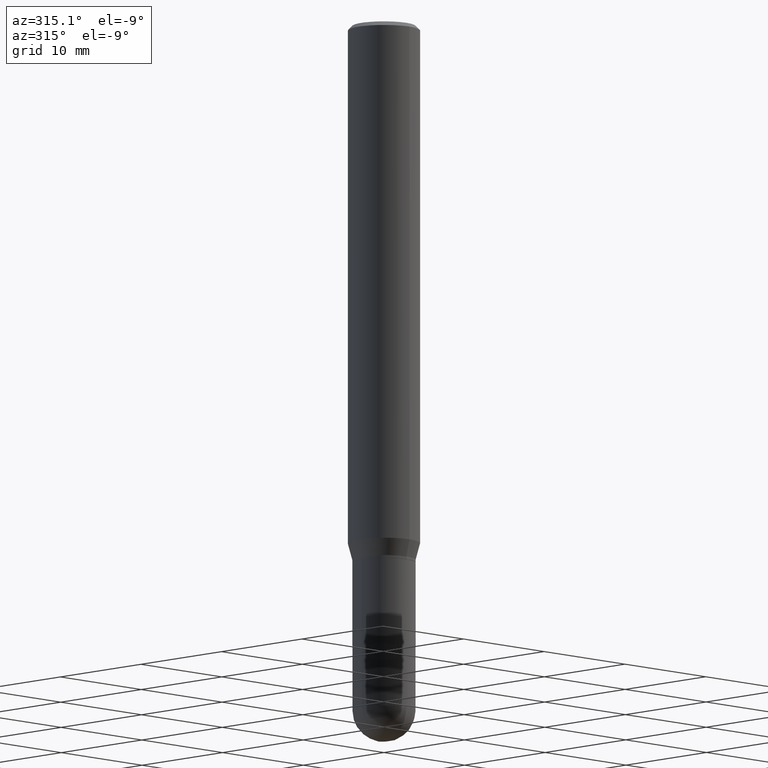
[diagram: clean part render]
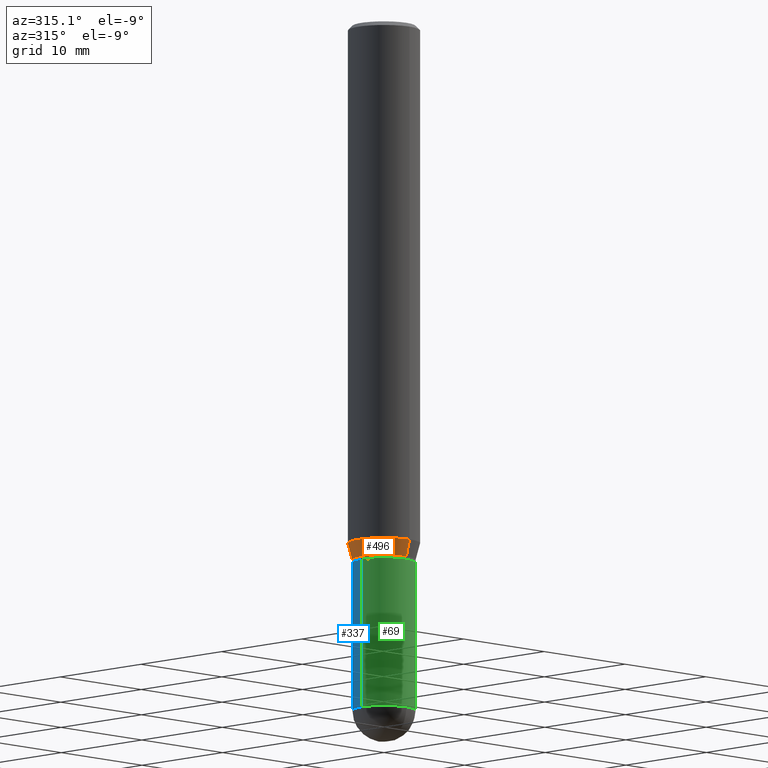
[diagram: same view with three faces highlighted in distinct colors, each labeled with its STEP entity id]
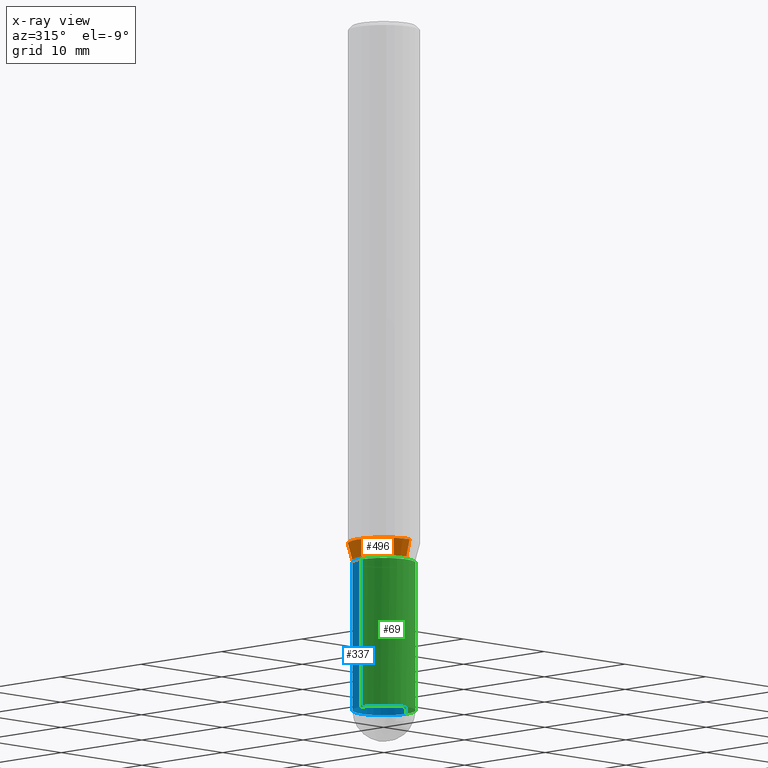
[diagram: x-ray of the same camera — body ghosted, the three highlighted faces saturated]
A machine part, auxiliary view with three faces highlighted in distinct colors.
The next image is the same camera in x-ray (body ghosted, the three faces saturated) — at least one of them is partly hidden behind the body in this view.
Their STEP definitions:

[orange] entity #496 — the highlighted conical surface has half-angle 15 deg.
#11 = DIRECTION ( 'NONE',  ( -6.982962677686265922E-15, -1.000000000000000000, 2.497118824190370411E-15 ) ) ;
#42 = CARTESIAN_POINT ( 'NONE',  ( 8.327560863108821759E-16, 0.1093999999999934053, -1.865000000000000213 ) ) ;
#47 = LINE ( 'NONE', #511, #150 ) ;
#49 = DIRECTION ( 'NONE',  ( -6.982962677686265922E-15, -1.000000000000000000, 4.370956789862821150E-15 ) ) ;
#58 = CARTESIAN_POINT ( 'NONE',  ( 8.881784197001690141E-16, 0.1249999999999936579, -1.806780007401925792 ) ) ;
#59 = EDGE_CURVE ( 'NONE', #508, #113, #47, .T. ) ;
#64 = ORIENTED_EDGE ( 'NONE', *, *, #306, .T. ) ;
#77 = VERTEX_POINT ( 'NONE', #42 ) ;
#88 = CARTESIAN_POINT ( 'NONE',  ( -8.728703347107391626E-16, -0.1250000000000063283, -1.806780007401924681 ) ) ;
#91 = EDGE_CURVE ( 'NONE', #321, #113, #204, .T. ) ;
#106 = CARTESIAN_POINT ( 'NONE',  ( 4.560828657900758226E-29, -6.511570688461491770E-15, -1.864999999999999991 ) ) ;
#113 = VERTEX_POINT ( 'NONE', #88 ) ;
#128 = DIRECTION ( 'NONE',  ( -2.445484535067431049E-29, 3.491458814188467583E-15, 1.000000000000000000 ) ) ;
#140 = CONICAL_SURFACE ( 'NONE', #468, 0.1093999999999999140, 0.2617993877991502960 ) ;
#142 = ORIENTED_EDGE ( 'NONE', *, *, #91, .F. ) ;
#150 = VECTOR ( 'NONE', #250, 39.37007874015748143 ) ;
#179 = CARTESIAN_POINT ( 'NONE',  ( 7.773337529215944502E-16, 0.1093999999999934053, -1.865000000000000213 ) ) ;
#203 = EDGE_LOOP ( 'NONE', ( #395, #64, #270, #142 ) ) ;
#204 = CIRCLE ( 'NONE', #466, 0.1250000000000000000 ) ;
#223 = CARTESIAN_POINT ( 'NONE',  ( -7.639361169388312262E-16, -0.1094000000000064227, -1.864999999999999547 ) ) ;
#240 = EDGE_CURVE ( 'NONE', #77, #321, #462, .T. ) ;
#250 = DIRECTION ( 'NONE',  ( -1.807323732225330139E-15, -0.2588190451025181860, 0.9659258262890689783 ) ) ;
#252 = DIRECTION ( 'NONE',  ( 1.839019923739600315E-15, 0.2588190451025249583, 0.9659258262890670910 ) ) ;
#253 = CIRCLE ( 'NONE', #392, 0.1093999999999999140 ) ;
#270 = ORIENTED_EDGE ( 'NONE', *, *, #59, .T. ) ;
#306 = EDGE_CURVE ( 'NONE', #77, #508, #253, .T. ) ;
#318 = VECTOR ( 'NONE', #252, 39.37007874015748143 ) ;
#321 = VERTEX_POINT ( 'NONE', #58 ) ;
#349 = DIRECTION ( 'NONE',  ( -6.982962677686265922E-15, -1.000000000000000000, 2.497118824190370411E-15 ) ) ;
#355 = FACE_OUTER_BOUND ( 'NONE', #203, .T. ) ;
#392 = AXIS2_PLACEMENT_3D ( 'NONE', #494, #448, #11 ) ;
#395 = ORIENTED_EDGE ( 'NONE', *, *, #240, .F. ) ;
#448 = DIRECTION ( 'NONE',  ( -2.445484535067431049E-29, 3.491458814188467583E-15, 1.000000000000000000 ) ) ;
#462 = LINE ( 'NONE', #179, #318 ) ;
#466 = AXIS2_PLACEMENT_3D ( 'NONE', #479, #128, #49 ) ;
#468 = AXIS2_PLACEMENT_3D ( 'NONE', #106, #473, #349 ) ;
#473 = DIRECTION ( 'NONE',  ( -2.445484535067431049E-29, 3.491458814188467583E-15, 1.000000000000000000 ) ) ;
#479 = CARTESIAN_POINT ( 'NONE',  ( 4.418452566370426579E-29, -6.308297982142956369E-15, -1.806780007401925348 ) ) ;
#494 = CARTESIAN_POINT ( 'NONE',  ( 4.560828657900758226E-29, -6.511570688461491770E-15, -1.864999999999999991 ) ) ;
#496 = ADVANCED_FACE ( 'NONE', ( #355 ), #140, .T. ) ;
#508 = VERTEX_POINT ( 'NONE', #223 ) ;
#511 = CARTESIAN_POINT ( 'NONE',  ( -7.639361169388312262E-16, -0.1094000000000064227, -1.864999999999999547 ) ) ;

[blue] entity #337 — the highlighted cylindrical surface (edge-blend (fillet) strip) has radius 2.7788 mm, axis along (-0, 0, 1).
#9 = CARTESIAN_POINT ( 'NONE',  ( 0.000000000000000000, 0.000000000000000000, 0.000000000000000000 ) ) ;
#10 = LINE ( 'NONE', #303, #449 ) ;
#15 = VECTOR ( 'NONE', #170, 39.37007874015748143 ) ;
#29 = VERTEX_POINT ( 'NONE', #292 ) ;
#31 = CIRCLE ( 'NONE', #370, 0.1093999999999999972 ) ;
#53 = EDGE_CURVE ( 'NONE', #425, #470, #324, .T. ) ;
#62 = CARTESIAN_POINT ( 'NONE',  ( 5.846137728066187200E-29, -8.346735288638422607E-15, -2.390600000000000058 ) ) ;
#73 = AXIS2_PLACEMENT_3D ( 'NONE', #9, #195, #424 ) ;
#93 = CIRCLE ( 'NONE', #362, 0.1093999999999999972 ) ;
#108 = VERTEX_POINT ( 'NONE', #478 ) ;
#118 = ORIENTED_EDGE ( 'NONE', *, *, #471, .T. ) ;
#124 = DIRECTION ( 'NONE',  ( 1.000000000000000000, -6.982962677686269866E-15, 0.000000000000000000 ) ) ;
#127 = DIRECTION ( 'NONE',  ( 1.000000000000000000, -6.982962677686269866E-15, 0.000000000000000000 ) ) ;
#147 = CARTESIAN_POINT ( 'NONE',  ( -0.1093999999999999972, -6.669297646563111468E-15, -1.875000000000000000 ) ) ;
#152 = DIRECTION ( 'NONE',  ( -2.445468806185136597E-29, 3.491481338843145583E-15, 1.000000000000000000 ) ) ;
#162 = EDGE_LOOP ( 'NONE', ( #118, #361, #244, #506, #396 ) ) ;
#168 = DIRECTION ( 'NONE',  ( -2.445468806185136597E-29, 3.491481338843145583E-15, 1.000000000000000000 ) ) ;
#169 = DIRECTION ( 'NONE',  ( -2.445468806185136597E-29, 3.491481338843145583E-15, 1.000000000000000000 ) ) ;
#170 = DIRECTION ( 'NONE',  ( -2.445468806185136877E-29, 3.491481338843145188E-15, 1.000000000000000000 ) ) ;
#174 = CARTESIAN_POINT ( 'NONE',  ( -0.1093999999999999972, 7.773337529215495838E-16, -5.381314988738867416E-30 ) ) ;
#191 = FACE_OUTER_BOUND ( 'NONE', #162, .T. ) ;
#195 = DIRECTION ( 'NONE',  ( -2.445468806185136597E-29, 3.491481338843145583E-15, 1.000000000000000000 ) ) ;
#197 = EDGE_CURVE ( 'NONE', #237, #470, #93, .T. ) ;
#216 = CARTESIAN_POINT ( 'NONE',  ( 5.846137728066187200E-29, -8.346735288638422607E-15, -2.390600000000000058 ) ) ;
#237 = VERTEX_POINT ( 'NONE', #312 ) ;
#244 = ORIENTED_EDGE ( 'NONE', *, *, #197, .F. ) ;
#248 = CARTESIAN_POINT ( 'NONE',  ( 4.585254011597131119E-29, -6.546527510330898707E-15, -1.875000000000000000 ) ) ;
#274 = AXIS2_PLACEMENT_3D ( 'NONE', #216, #168, #127 ) ;
#290 = DIRECTION ( 'NONE',  ( -2.445468806185136877E-29, 3.491481338843145188E-15, 1.000000000000000000 ) ) ;
#292 = CARTESIAN_POINT ( 'NONE',  ( 0.1093999999999999972, -8.210567516423539018E-15, -2.390600000000000058 ) ) ;
#303 = CARTESIAN_POINT ( 'NONE',  ( 0.1093999999999999972, -7.639361169388775718E-16, 5.334537392720753909E-30 ) ) ;
#312 = CARTESIAN_POINT ( 'NONE',  ( 0.1093999999999999972, -7.310463627269777068E-15, -1.875000000000000000 ) ) ;
#313 = DIRECTION ( 'NONE',  ( 1.000000000000000000, -6.982962677686269866E-15, 0.000000000000000000 ) ) ;
#324 = LINE ( 'NONE', #174, #15 ) ;
#337 = ADVANCED_FACE ( 'NONE', ( #191 ), #447, .T. ) ;
#361 = ORIENTED_EDGE ( 'NONE', *, *, #53, .T. ) ;
#362 = AXIS2_PLACEMENT_3D ( 'NONE', #248, #169, #124 ) ;
#370 = AXIS2_PLACEMENT_3D ( 'NONE', #62, #152, #313 ) ;
#396 = ORIENTED_EDGE ( 'NONE', *, *, #510, .T. ) ;
#399 = EDGE_CURVE ( 'NONE', #29, #237, #10, .T. ) ;
#412 = CARTESIAN_POINT ( 'NONE',  ( -0.1093999999999999972, -6.669297646563111468E-15, -2.390600000000000058 ) ) ;
#421 = CIRCLE ( 'NONE', #274, 0.1093999999999999972 ) ;
#424 = DIRECTION ( 'NONE',  ( 1.000000000000000000, -6.982962677686266711E-15, 4.876176775795935793E-29 ) ) ;
#425 = VERTEX_POINT ( 'NONE', #412 ) ;
#447 = CYLINDRICAL_SURFACE ( 'NONE', #73, 0.1093999999999999972 ) ;
#449 = VECTOR ( 'NONE', #290, 39.37007874015748143 ) ;
#470 = VERTEX_POINT ( 'NONE', #147 ) ;
#471 = EDGE_CURVE ( 'NONE', #108, #425, #31, .T. ) ;
#478 = CARTESIAN_POINT ( 'NONE',  ( 7.639361169389358489E-16, 0.1093999999999916289, -2.390600000000000058 ) ) ;
#506 = ORIENTED_EDGE ( 'NONE', *, *, #399, .F. ) ;
#510 = EDGE_CURVE ( 'NONE', #29, #108, #421, .T. ) ;

[green] entity #69 — the highlighted cylindrical surface (edge-blend (fillet) strip) has radius 2.7788 mm, axis along (-0, 0, 1).
#3 = DIRECTION ( 'NONE',  ( 1.000000000000000000, -6.982962677686269866E-15, 0.000000000000000000 ) ) ;
#5 = DIRECTION ( 'NONE',  ( 1.000000000000000000, -6.982962677686266711E-15, 4.876176775795935793E-29 ) ) ;
#8 = DIRECTION ( 'NONE',  ( -2.445468806185136597E-29, 3.491481338843145583E-15, 1.000000000000000000 ) ) ;
#10 = LINE ( 'NONE', #303, #449 ) ;
#15 = VECTOR ( 'NONE', #170, 39.37007874015748143 ) ;
#29 = VERTEX_POINT ( 'NONE', #292 ) ;
#43 = ORIENTED_EDGE ( 'NONE', *, *, #438, .T. ) ;
#44 = EDGE_CURVE ( 'NONE', #470, #237, #181, .T. ) ;
#51 = CIRCLE ( 'NONE', #120, 0.1093999999999999972 ) ;
#53 = EDGE_CURVE ( 'NONE', #425, #470, #324, .T. ) ;
#69 = ADVANCED_FACE ( 'NONE', ( #82 ), #332, .T. ) ;
#78 = EDGE_CURVE ( 'NONE', #425, #154, #182, .T. ) ;
#82 = FACE_OUTER_BOUND ( 'NONE', #264, .T. ) ;
#120 = AXIS2_PLACEMENT_3D ( 'NONE', #378, #386, #194 ) ;
#129 = DIRECTION ( 'NONE',  ( -2.445468806185136597E-29, 3.491481338843145583E-15, 1.000000000000000000 ) ) ;
#147 = CARTESIAN_POINT ( 'NONE',  ( -0.1093999999999999972, -6.669297646563111468E-15, -1.875000000000000000 ) ) ;
#154 = VERTEX_POINT ( 'NONE', #211 ) ;
#170 = DIRECTION ( 'NONE',  ( -2.445468806185136877E-29, 3.491481338843145188E-15, 1.000000000000000000 ) ) ;
#174 = CARTESIAN_POINT ( 'NONE',  ( -0.1093999999999999972, 7.773337529215495838E-16, -5.381314988738867416E-30 ) ) ;
#181 = CIRCLE ( 'NONE', #360, 0.1093999999999999972 ) ;
#182 = CIRCLE ( 'NONE', #417, 0.1093999999999999972 ) ;
#194 = DIRECTION ( 'NONE',  ( 1.000000000000000000, -6.982962677686269866E-15, 0.000000000000000000 ) ) ;
#202 = ORIENTED_EDGE ( 'NONE', *, *, #78, .T. ) ;
#211 = CARTESIAN_POINT ( 'NONE',  ( -7.773337529214909122E-16, -0.1094000000000083378, -2.390599999999999614 ) ) ;
#218 = CARTESIAN_POINT ( 'NONE',  ( 5.846137728066187200E-29, -8.346735288638422607E-15, -2.390600000000000058 ) ) ;
#237 = VERTEX_POINT ( 'NONE', #312 ) ;
#249 = CARTESIAN_POINT ( 'NONE',  ( 0.000000000000000000, 0.000000000000000000, 0.000000000000000000 ) ) ;
#264 = EDGE_LOOP ( 'NONE', ( #464, #202, #43, #391, #397 ) ) ;
#290 = DIRECTION ( 'NONE',  ( -2.445468806185136877E-29, 3.491481338843145188E-15, 1.000000000000000000 ) ) ;
#292 = CARTESIAN_POINT ( 'NONE',  ( 0.1093999999999999972, -8.210567516423539018E-15, -2.390600000000000058 ) ) ;
#303 = CARTESIAN_POINT ( 'NONE',  ( 0.1093999999999999972, -7.639361169388775718E-16, 5.334537392720753909E-30 ) ) ;
#312 = CARTESIAN_POINT ( 'NONE',  ( 0.1093999999999999972, -7.310463627269777068E-15, -1.875000000000000000 ) ) ;
#324 = LINE ( 'NONE', #174, #15 ) ;
#332 = CYLINDRICAL_SURFACE ( 'NONE', #488, 0.1093999999999999972 ) ;
#360 = AXIS2_PLACEMENT_3D ( 'NONE', #404, #129, #3 ) ;
#373 = DIRECTION ( 'NONE',  ( 1.000000000000000000, -6.982962677686269866E-15, 0.000000000000000000 ) ) ;
#378 = CARTESIAN_POINT ( 'NONE',  ( 5.846137728066187200E-29, -8.346735288638422607E-15, -2.390600000000000058 ) ) ;
#386 = DIRECTION ( 'NONE',  ( -2.445468806185136597E-29, 3.491481338843145583E-15, 1.000000000000000000 ) ) ;
#391 = ORIENTED_EDGE ( 'NONE', *, *, #399, .T. ) ;
#397 = ORIENTED_EDGE ( 'NONE', *, *, #44, .F. ) ;
#399 = EDGE_CURVE ( 'NONE', #29, #237, #10, .T. ) ;
#404 = CARTESIAN_POINT ( 'NONE',  ( 4.585254011597131119E-29, -6.546527510330898707E-15, -1.875000000000000000 ) ) ;
#412 = CARTESIAN_POINT ( 'NONE',  ( -0.1093999999999999972, -6.669297646563111468E-15, -2.390600000000000058 ) ) ;
#417 = AXIS2_PLACEMENT_3D ( 'NONE', #218, #8, #373 ) ;
#425 = VERTEX_POINT ( 'NONE', #412 ) ;
#438 = EDGE_CURVE ( 'NONE', #154, #29, #51, .T. ) ;
#445 = DIRECTION ( 'NONE',  ( -2.445468806185136597E-29, 3.491481338843145583E-15, 1.000000000000000000 ) ) ;
#449 = VECTOR ( 'NONE', #290, 39.37007874015748143 ) ;
#464 = ORIENTED_EDGE ( 'NONE', *, *, #53, .F. ) ;
#470 = VERTEX_POINT ( 'NONE', #147 ) ;
#488 = AXIS2_PLACEMENT_3D ( 'NONE', #249, #445, #5 ) ;